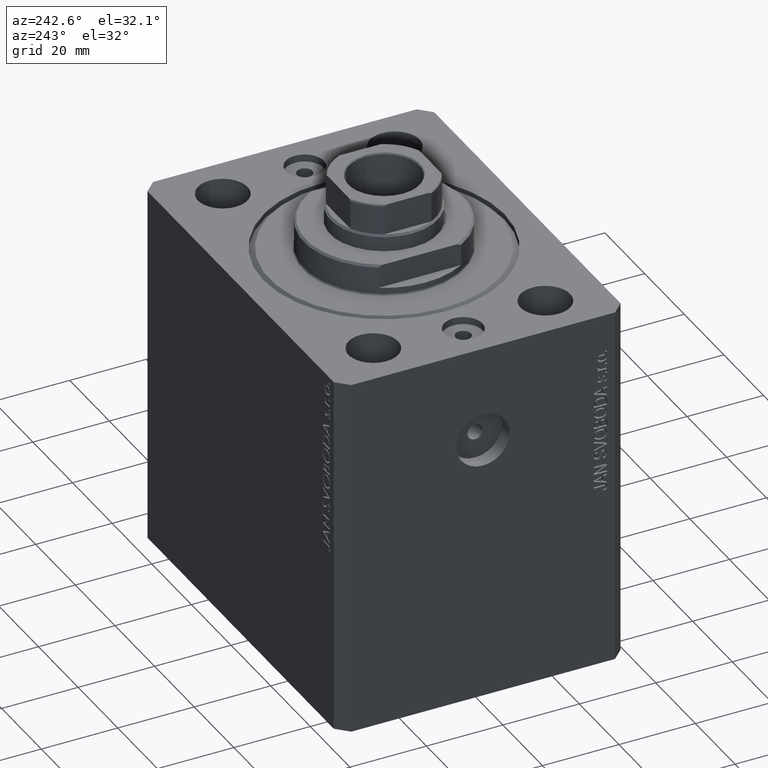
[diagram: clean part render]
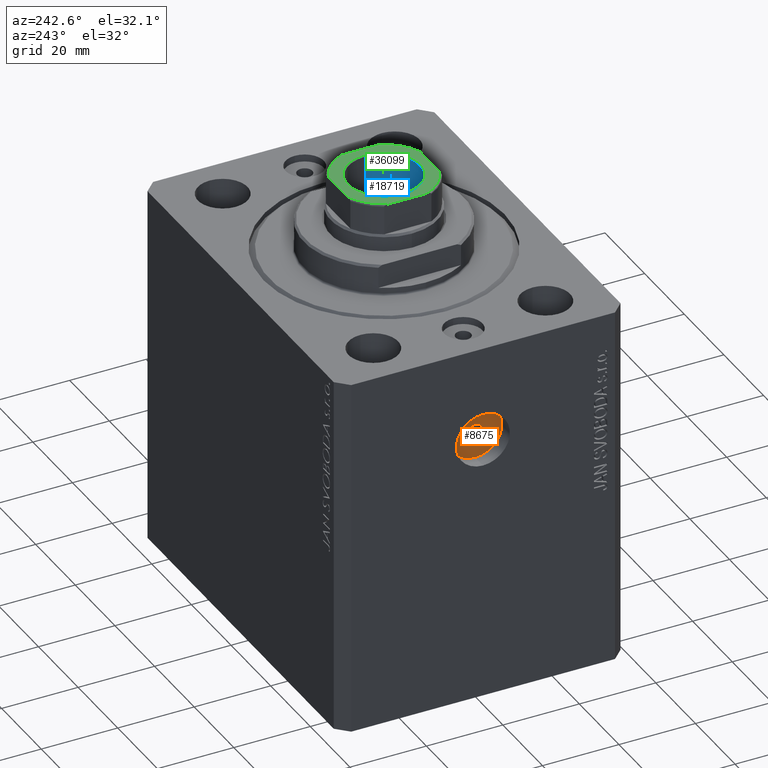
[diagram: same view with three faces highlighted in distinct colors, each labeled with its STEP entity id]
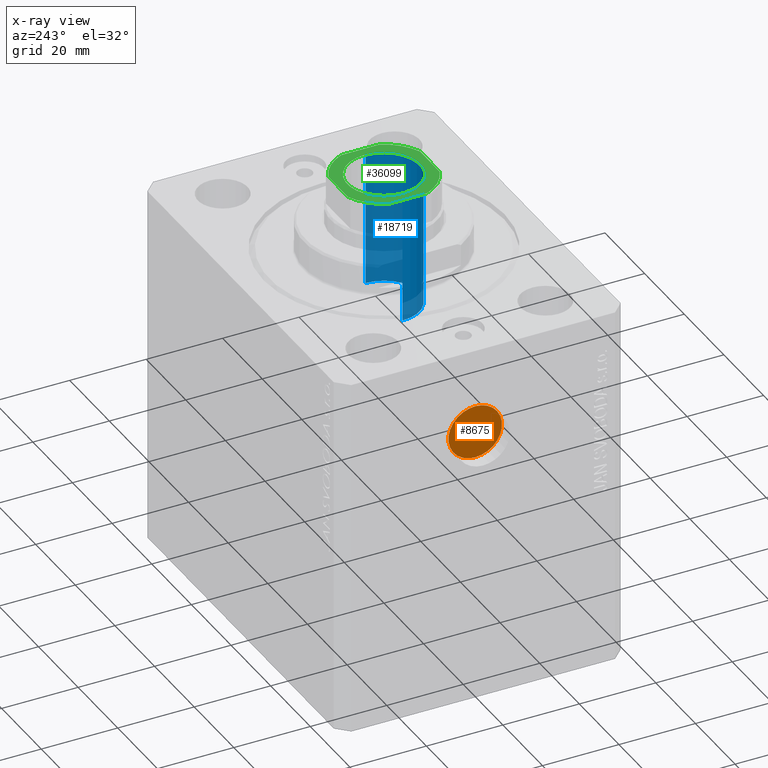
[diagram: x-ray of the same camera — body ghosted, the three highlighted faces saturated]
A machine part, auxiliary view with three faces highlighted in distinct colors.
The next image is the same camera in x-ray (body ghosted, the three faces saturated) — at least one of them is partly hidden behind the body in this view.
Their STEP definitions:

[orange] entity #8675 — the highlighted planar face has unit normal (-1, 0, 0).
#447 = EDGE_LOOP ( 'NONE', ( #23639, #40502 ) ) ;
#583 = AXIS2_PLACEMENT_3D ( 'NONE', #39786, #36857, #29667 ) ;
#1079 = DIRECTION ( 'NONE',  ( 0.000000000000000000, 0.000000000000000000, 1.000000000000000000 ) ) ;
#1255 = EDGE_CURVE ( 'NONE', #15479, #14524, #2586, .T. ) ;
#2586 = CIRCLE ( 'NONE', #36346, 6.999999999999999112 ) ;
#4278 = AXIS2_PLACEMENT_3D ( 'NONE', #41826, #34645, #42046 ) ;
#4963 = CARTESIAN_POINT ( 'NONE',  ( -46.00000000000001421, -1.005636797667714365E-14, -18.00000000000000000 ) ) ;
#8531 = EDGE_LOOP ( 'NONE', ( #20450, #36557 ) ) ;
#8675 = ADVANCED_FACE ( 'NONE', ( #29890, #43813 ), #15957, .T. ) ;
#11273 = VERTEX_POINT ( 'NONE', #25053 ) ;
#11601 = CIRCLE ( 'NONE', #27367, 1.999999999999998224 ) ;
#13214 = EDGE_CURVE ( 'NONE', #11273, #18896, #23657, .T. ) ;
#14524 = VERTEX_POINT ( 'NONE', #37908 ) ;
#15479 = VERTEX_POINT ( 'NONE', #4963 ) ;
#15957 = PLANE ( 'NONE',  #583 ) ;
#17015 = CARTESIAN_POINT ( 'NONE',  ( -46.00000000000001421, -1.005636797667714365E-14, -24.99999999999999645 ) ) ;
#17243 = DIRECTION ( 'NONE',  ( 0.000000000000000000, 0.000000000000000000, 1.000000000000000000 ) ) ;
#18896 = VERTEX_POINT ( 'NONE', #22382 ) ;
#20450 = ORIENTED_EDGE ( 'NONE', *, *, #21234, .F. ) ;
#21234 = EDGE_CURVE ( 'NONE', #18896, #11273, #11601, .T. ) ;
#22382 = CARTESIAN_POINT ( 'NONE',  ( -46.00000000000001421, -1.005636797667714365E-14, -23.00000000000000000 ) ) ;
#23639 = ORIENTED_EDGE ( 'NONE', *, *, #1255, .T. ) ;
#23657 = CIRCLE ( 'NONE', #4278, 1.999999999999998224 ) ;
#24349 = CIRCLE ( 'NONE', #43007, 6.999999999999999112 ) ;
#25053 = CARTESIAN_POINT ( 'NONE',  ( -46.00000000000001421, -9.811438616847673355E-15, -26.99999999999999645 ) ) ;
#25656 = DIRECTION ( 'NONE',  ( -1.000000000000000000, 0.000000000000000000, 0.000000000000000000 ) ) ;
#27367 = AXIS2_PLACEMENT_3D ( 'NONE', #17015, #44443, #17243 ) ;
#29667 = DIRECTION ( 'NONE',  ( 0.000000000000000000, 0.000000000000000000, 1.000000000000000000 ) ) ;
#29890 = FACE_BOUND ( 'NONE', #8531, .T. ) ;
#31969 = EDGE_CURVE ( 'NONE', #14524, #15479, #24349, .T. ) ;
#34645 = DIRECTION ( 'NONE',  ( -1.000000000000000000, 0.000000000000000000, 0.000000000000000000 ) ) ;
#36233 = DIRECTION ( 'NONE',  ( 0.000000000000000000, 0.000000000000000000, 1.000000000000000000 ) ) ;
#36346 = AXIS2_PLACEMENT_3D ( 'NONE', #42749, #25656, #36233 ) ;
#36557 = ORIENTED_EDGE ( 'NONE', *, *, #13214, .F. ) ;
#36857 = DIRECTION ( 'NONE',  ( -1.000000000000000000, 0.000000000000000000, 0.000000000000000000 ) ) ;
#37908 = CARTESIAN_POINT ( 'NONE',  ( -46.00000000000001421, -9.199115217273997614E-15, -32.00000000000000000 ) ) ;
#38619 = CARTESIAN_POINT ( 'NONE',  ( -46.00000000000001421, -1.005636797667714365E-14, -24.99999999999999645 ) ) ;
#39786 = CARTESIAN_POINT ( 'NONE',  ( -46.00000000000001421, -1.005636797667714365E-14, -24.99999999999999645 ) ) ;
#40502 = ORIENTED_EDGE ( 'NONE', *, *, #31969, .T. ) ;
#41318 = DIRECTION ( 'NONE',  ( -1.000000000000000000, 0.000000000000000000, 0.000000000000000000 ) ) ;
#41826 = CARTESIAN_POINT ( 'NONE',  ( -46.00000000000001421, -1.005636797667714365E-14, -24.99999999999999645 ) ) ;
#42046 = DIRECTION ( 'NONE',  ( 0.000000000000000000, 0.000000000000000000, 1.000000000000000000 ) ) ;
#42749 = CARTESIAN_POINT ( 'NONE',  ( -46.00000000000001421, -1.005636797667714365E-14, -24.99999999999999645 ) ) ;
#43007 = AXIS2_PLACEMENT_3D ( 'NONE', #38619, #41318, #1079 ) ;
#43813 = FACE_OUTER_BOUND ( 'NONE', #447, .T. ) ;
#44443 = DIRECTION ( 'NONE',  ( -1.000000000000000000, 0.000000000000000000, 0.000000000000000000 ) ) ;

[blue] entity #18719 — the highlighted cylindrical surface (partial cylindrical patch) has radius 9.25 mm, axis along (0, 0, 1).
#554 = CIRCLE ( 'NONE', #7752, 9.249999999999996447 ) ;
#902 = VECTOR ( 'NONE', #41102, 1000.000000000000000 ) ;
#1941 = CARTESIAN_POINT ( 'NONE',  ( -9.249999999999994671, 1.132798289211300909E-15, 68.09999999999999432 ) ) ;
#3209 = DIRECTION ( 'NONE',  ( 1.000000000000000000, 0.000000000000000000, 0.000000000000000000 ) ) ;
#3557 = LINE ( 'NONE', #44471, #902 ) ;
#5763 = VERTEX_POINT ( 'NONE', #1941 ) ;
#6368 = DIRECTION ( 'NONE',  ( 0.000000000000000000, 0.000000000000000000, 1.000000000000000000 ) ) ;
#6894 = EDGE_CURVE ( 'NONE', #13050, #25341, #554, .T. ) ;
#7752 = AXIS2_PLACEMENT_3D ( 'NONE', #9312, #6368, #3209 ) ;
#7764 = LINE ( 'NONE', #21468, #25185 ) ;
#9312 = CARTESIAN_POINT ( 'NONE',  ( 0.000000000000000000, 0.000000000000000000, 102.7999999999999545 ) ) ;
#13050 = VERTEX_POINT ( 'NONE', #39914 ) ;
#14077 = FACE_OUTER_BOUND ( 'NONE', #14928, .T. ) ;
#14184 = ORIENTED_EDGE ( 'NONE', *, *, #30793, .F. ) ;
#14928 = EDGE_LOOP ( 'NONE', ( #14184, #42607, #33308, #27121 ) ) ;
#18719 = ADVANCED_FACE ( 'NONE', ( #14077 ), #37028, .F. ) ;
#19823 = DIRECTION ( 'NONE',  ( 1.000000000000000000, 0.000000000000000000, 0.000000000000000000 ) ) ;
#21425 = CIRCLE ( 'NONE', #22147, 9.249999999999994671 ) ;
#21468 = CARTESIAN_POINT ( 'NONE',  ( 9.249999999999996447, 0.000000000000000000, 103.0999999999999943 ) ) ;
#22147 = AXIS2_PLACEMENT_3D ( 'NONE', #33541, #23190, #19823 ) ;
#23190 = DIRECTION ( 'NONE',  ( -0.000000000000000000, -0.000000000000000000, 1.000000000000000000 ) ) ;
#25185 = VECTOR ( 'NONE', #32495, 1000.000000000000000 ) ;
#25341 = VERTEX_POINT ( 'NONE', #32578 ) ;
#26550 = EDGE_CURVE ( 'NONE', #5763, #13050, #3557, .T. ) ;
#27121 = ORIENTED_EDGE ( 'NONE', *, *, #28419, .F. ) ;
#28419 = EDGE_CURVE ( 'NONE', #35845, #25341, #7764, .T. ) ;
#30793 = EDGE_CURVE ( 'NONE', #5763, #35845, #21425, .T. ) ;
#30945 = CARTESIAN_POINT ( 'NONE',  ( 0.000000000000000000, 0.000000000000000000, 103.0999999999999943 ) ) ;
#32495 = DIRECTION ( 'NONE',  ( -0.000000000000000000, -0.000000000000000000, 1.000000000000000000 ) ) ;
#32578 = CARTESIAN_POINT ( 'NONE',  ( 9.249999999999996447, 0.000000000000000000, 102.7999999999999545 ) ) ;
#33308 = ORIENTED_EDGE ( 'NONE', *, *, #6894, .T. ) ;
#33541 = CARTESIAN_POINT ( 'NONE',  ( 0.000000000000000000, 0.000000000000000000, 68.09999999999999432 ) ) ;
#33877 = DIRECTION ( 'NONE',  ( -0.000000000000000000, -0.000000000000000000, 1.000000000000000000 ) ) ;
#34511 = AXIS2_PLACEMENT_3D ( 'NONE', #30945, #33877, #37894 ) ;
#34714 = CARTESIAN_POINT ( 'NONE',  ( 9.249999999999994671, 0.000000000000000000, 68.09999999999999432 ) ) ;
#35845 = VERTEX_POINT ( 'NONE', #34714 ) ;
#37028 = CYLINDRICAL_SURFACE ( 'NONE', #34511, 9.249999999999996447 ) ;
#37894 = DIRECTION ( 'NONE',  ( 1.000000000000000000, 0.000000000000000000, 0.000000000000000000 ) ) ;
#39914 = CARTESIAN_POINT ( 'NONE',  ( -9.249999999999996447, 1.132798289211301304E-15, 102.7999999999999545 ) ) ;
#41102 = DIRECTION ( 'NONE',  ( -0.000000000000000000, -0.000000000000000000, 1.000000000000000000 ) ) ;
#42607 = ORIENTED_EDGE ( 'NONE', *, *, #26550, .T. ) ;
#44471 = CARTESIAN_POINT ( 'NONE',  ( -9.249999999999996447, 1.132798289211301304E-15, 103.0999999999999943 ) ) ;

[green] entity #36099 — the highlighted planar face has unit normal (0, 0, 1).
#253 = FACE_BOUND ( 'NONE', #30232, .T. ) ;
#973 = CIRCLE ( 'NONE', #21061, 9.550000000000016698 ) ;
#1083 = VERTEX_POINT ( 'NONE', #20501 ) ;
#1956 = AXIS2_PLACEMENT_3D ( 'NONE', #21825, #24305, #28117 ) ;
#2031 = AXIS2_PLACEMENT_3D ( 'NONE', #42532, #11070, #24774 ) ;
#2378 = AXIS2_PLACEMENT_3D ( 'NONE', #3402, #30840, #34876 ) ;
#2689 = AXIS2_PLACEMENT_3D ( 'NONE', #18861, #11671, #39308 ) ;
#3195 = CARTESIAN_POINT ( 'NONE',  ( 4.999999999999993783, -12.00000000000000178, 103.0999999999999943 ) ) ;
#3275 = LINE ( 'NONE', #21245, #23224 ) ;
#3402 = CARTESIAN_POINT ( 'NONE',  ( 0.000000000000000000, 0.000000000000000000, 103.0999999999999943 ) ) ;
#3477 = DIRECTION ( 'NONE',  ( 0.000000000000000000, -0.000000000000000000, -1.000000000000000000 ) ) ;
#5001 = ORIENTED_EDGE ( 'NONE', *, *, #35684, .T. ) ;
#5079 = EDGE_CURVE ( 'NONE', #24703, #35561, #29221, .T. ) ;
#5401 = CARTESIAN_POINT ( 'NONE',  ( 0.000000000000000000, 0.000000000000000000, 103.0999999999999943 ) ) ;
#5769 = AXIS2_PLACEMENT_3D ( 'NONE', #18621, #35260, #32342 ) ;
#5999 = CARTESIAN_POINT ( 'NONE',  ( 0.000000000000000000, 0.000000000000000000, 103.0999999999999943 ) ) ;
#6192 = EDGE_CURVE ( 'NONE', #15221, #11634, #26396, .T. ) ;
#6614 = EDGE_CURVE ( 'NONE', #7267, #20758, #10601, .T. ) ;
#6901 = EDGE_LOOP ( 'NONE', ( #41669, #36165, #26478, #13769, #13677, #21043, #31993, #5001 ) ) ;
#7122 = CARTESIAN_POINT ( 'NONE',  ( -11.99999999999999822, 11.99999999999999822, 103.0999999999999943 ) ) ;
#7267 = VERTEX_POINT ( 'NONE', #39998 ) ;
#7660 = LINE ( 'NONE', #42497, #17424 ) ;
#8571 = CARTESIAN_POINT ( 'NONE',  ( -9.550000000000016698, 1.169537693185724333E-15, 103.0999999999999943 ) ) ;
#8956 = DIRECTION ( 'NONE',  ( 7.228014483236695816E-17, -1.000000000000000000, 0.000000000000000000 ) ) ;
#10258 = CARTESIAN_POINT ( 'NONE',  ( -11.99999999999999822, 5.000000000000000888, 103.0999999999999943 ) ) ;
#10273 = LINE ( 'NONE', #7122, #35923 ) ;
#10376 = PLANE ( 'NONE',  #2378 ) ;
#10601 = CIRCLE ( 'NONE', #12770, 9.550000000000016698 ) ;
#11070 = DIRECTION ( 'NONE',  ( -0.000000000000000000, 0.000000000000000000, 1.000000000000000000 ) ) ;
#11634 = VERTEX_POINT ( 'NONE', #29217 ) ;
#11671 = DIRECTION ( 'NONE',  ( -0.000000000000000000, 0.000000000000000000, 1.000000000000000000 ) ) ;
#12770 = AXIS2_PLACEMENT_3D ( 'NONE', #5999, #3477, #38093 ) ;
#12905 = VERTEX_POINT ( 'NONE', #10258 ) ;
#13677 = ORIENTED_EDGE ( 'NONE', *, *, #26386, .T. ) ;
#13769 = ORIENTED_EDGE ( 'NONE', *, *, #5079, .T. ) ;
#14285 = DIRECTION ( 'NONE',  ( 1.000000000000000000, 7.228014483236695816E-17, 0.000000000000000000 ) ) ;
#14466 = EDGE_CURVE ( 'NONE', #11634, #1083, #10273, .T. ) ;
#14653 = ORIENTED_EDGE ( 'NONE', *, *, #38398, .T. ) ;
#15084 = CIRCLE ( 'NONE', #5769, 13.00000000000000000 ) ;
#15221 = VERTEX_POINT ( 'NONE', #38923 ) ;
#15687 = LINE ( 'NONE', #39967, #40931 ) ;
#17424 = VECTOR ( 'NONE', #24953, 1000.000000000000000 ) ;
#18621 = CARTESIAN_POINT ( 'NONE',  ( 0.000000000000000000, 0.000000000000000000, 103.0999999999999943 ) ) ;
#18861 = CARTESIAN_POINT ( 'NONE',  ( 0.000000000000000000, 0.000000000000000000, 103.0999999999999943 ) ) ;
#20501 = CARTESIAN_POINT ( 'NONE',  ( -5.000000000000001776, 11.99999999999999822, 103.0999999999999943 ) ) ;
#20758 = VERTEX_POINT ( 'NONE', #8571 ) ;
#21043 = ORIENTED_EDGE ( 'NONE', *, *, #6192, .T. ) ;
#21061 = AXIS2_PLACEMENT_3D ( 'NONE', #5401, #32828, #31998 ) ;
#21245 = CARTESIAN_POINT ( 'NONE',  ( -11.99999999999999645, -12.00000000000000178, 103.0999999999999943 ) ) ;
#21825 = CARTESIAN_POINT ( 'NONE',  ( 0.000000000000000000, 0.000000000000000000, 103.0999999999999943 ) ) ;
#23224 = VECTOR ( 'NONE', #14285, 1000.000000000000000 ) ;
#23579 = CARTESIAN_POINT ( 'NONE',  ( 12.00000000000000178, -4.999999999999990230, 103.0999999999999943 ) ) ;
#24305 = DIRECTION ( 'NONE',  ( -0.000000000000000000, 0.000000000000000000, 1.000000000000000000 ) ) ;
#24703 = VERTEX_POINT ( 'NONE', #3195 ) ;
#24774 = DIRECTION ( 'NONE',  ( 1.000000000000000000, 0.000000000000000000, 0.000000000000000000 ) ) ;
#24953 = DIRECTION ( 'NONE',  ( -1.445602896647339163E-16, 1.000000000000000000, -0.000000000000000000 ) ) ;
#26117 = CARTESIAN_POINT ( 'NONE',  ( -11.99999999999999822, -5.000000000000001776, 103.0999999999999943 ) ) ;
#26386 = EDGE_CURVE ( 'NONE', #35561, #15221, #7660, .T. ) ;
#26396 = CIRCLE ( 'NONE', #2689, 13.00000000000000000 ) ;
#26478 = ORIENTED_EDGE ( 'NONE', *, *, #38055, .T. ) ;
#26771 = EDGE_CURVE ( 'NONE', #12905, #30031, #15687, .T. ) ;
#28117 = DIRECTION ( 'NONE',  ( 1.000000000000000000, 0.000000000000000000, 0.000000000000000000 ) ) ;
#29217 = CARTESIAN_POINT ( 'NONE',  ( 5.000000000000002665, 12.00000000000000000, 103.0999999999999943 ) ) ;
#29221 = CIRCLE ( 'NONE', #1956, 13.00000000000000000 ) ;
#29961 = EDGE_CURVE ( 'NONE', #30031, #40721, #35749, .T. ) ;
#30031 = VERTEX_POINT ( 'NONE', #26117 ) ;
#30232 = EDGE_LOOP ( 'NONE', ( #31212, #14653 ) ) ;
#30840 = DIRECTION ( 'NONE',  ( -0.000000000000000000, 0.000000000000000000, 1.000000000000000000 ) ) ;
#31212 = ORIENTED_EDGE ( 'NONE', *, *, #6614, .T. ) ;
#31993 = ORIENTED_EDGE ( 'NONE', *, *, #14466, .T. ) ;
#31998 = DIRECTION ( 'NONE',  ( 1.000000000000000000, 0.000000000000000000, 0.000000000000000000 ) ) ;
#32342 = DIRECTION ( 'NONE',  ( 1.000000000000000000, 0.000000000000000000, 0.000000000000000000 ) ) ;
#32828 = DIRECTION ( 'NONE',  ( 0.000000000000000000, -0.000000000000000000, -1.000000000000000000 ) ) ;
#34876 = DIRECTION ( 'NONE',  ( 1.000000000000000000, 0.000000000000000000, 0.000000000000000000 ) ) ;
#35260 = DIRECTION ( 'NONE',  ( -0.000000000000000000, 0.000000000000000000, 1.000000000000000000 ) ) ;
#35561 = VERTEX_POINT ( 'NONE', #23579 ) ;
#35684 = EDGE_CURVE ( 'NONE', #1083, #12905, #15084, .T. ) ;
#35749 = CIRCLE ( 'NONE', #2031, 13.00000000000000000 ) ;
#35923 = VECTOR ( 'NONE', #38360, 1000.000000000000000 ) ;
#36099 = ADVANCED_FACE ( 'NONE', ( #253, #38244 ), #10376, .T. ) ;
#36165 = ORIENTED_EDGE ( 'NONE', *, *, #29961, .T. ) ;
#37863 = CARTESIAN_POINT ( 'NONE',  ( -4.999999999999992895, -12.00000000000000178, 103.0999999999999943 ) ) ;
#38055 = EDGE_CURVE ( 'NONE', #40721, #24703, #3275, .T. ) ;
#38093 = DIRECTION ( 'NONE',  ( 1.000000000000000000, 0.000000000000000000, 0.000000000000000000 ) ) ;
#38244 = FACE_OUTER_BOUND ( 'NONE', #6901, .T. ) ;
#38360 = DIRECTION ( 'NONE',  ( -1.000000000000000000, -7.228014483236695816E-17, -0.000000000000000000 ) ) ;
#38398 = EDGE_CURVE ( 'NONE', #20758, #7267, #973, .T. ) ;
#38923 = CARTESIAN_POINT ( 'NONE',  ( 12.00000000000000178, 4.999999999999994671, 103.0999999999999943 ) ) ;
#39308 = DIRECTION ( 'NONE',  ( 1.000000000000000000, 0.000000000000000000, 0.000000000000000000 ) ) ;
#39967 = CARTESIAN_POINT ( 'NONE',  ( -11.99999999999999822, 11.99999999999999822, 103.0999999999999943 ) ) ;
#39998 = CARTESIAN_POINT ( 'NONE',  ( 9.550000000000016698, 0.000000000000000000, 103.0999999999999943 ) ) ;
#40721 = VERTEX_POINT ( 'NONE', #37863 ) ;
#40931 = VECTOR ( 'NONE', #8956, 1000.000000000000000 ) ;
#41669 = ORIENTED_EDGE ( 'NONE', *, *, #26771, .T. ) ;
#42497 = CARTESIAN_POINT ( 'NONE',  ( 12.00000000000000000, 12.00000000000000000, 103.0999999999999943 ) ) ;
#42532 = CARTESIAN_POINT ( 'NONE',  ( 0.000000000000000000, 0.000000000000000000, 103.0999999999999943 ) ) ;